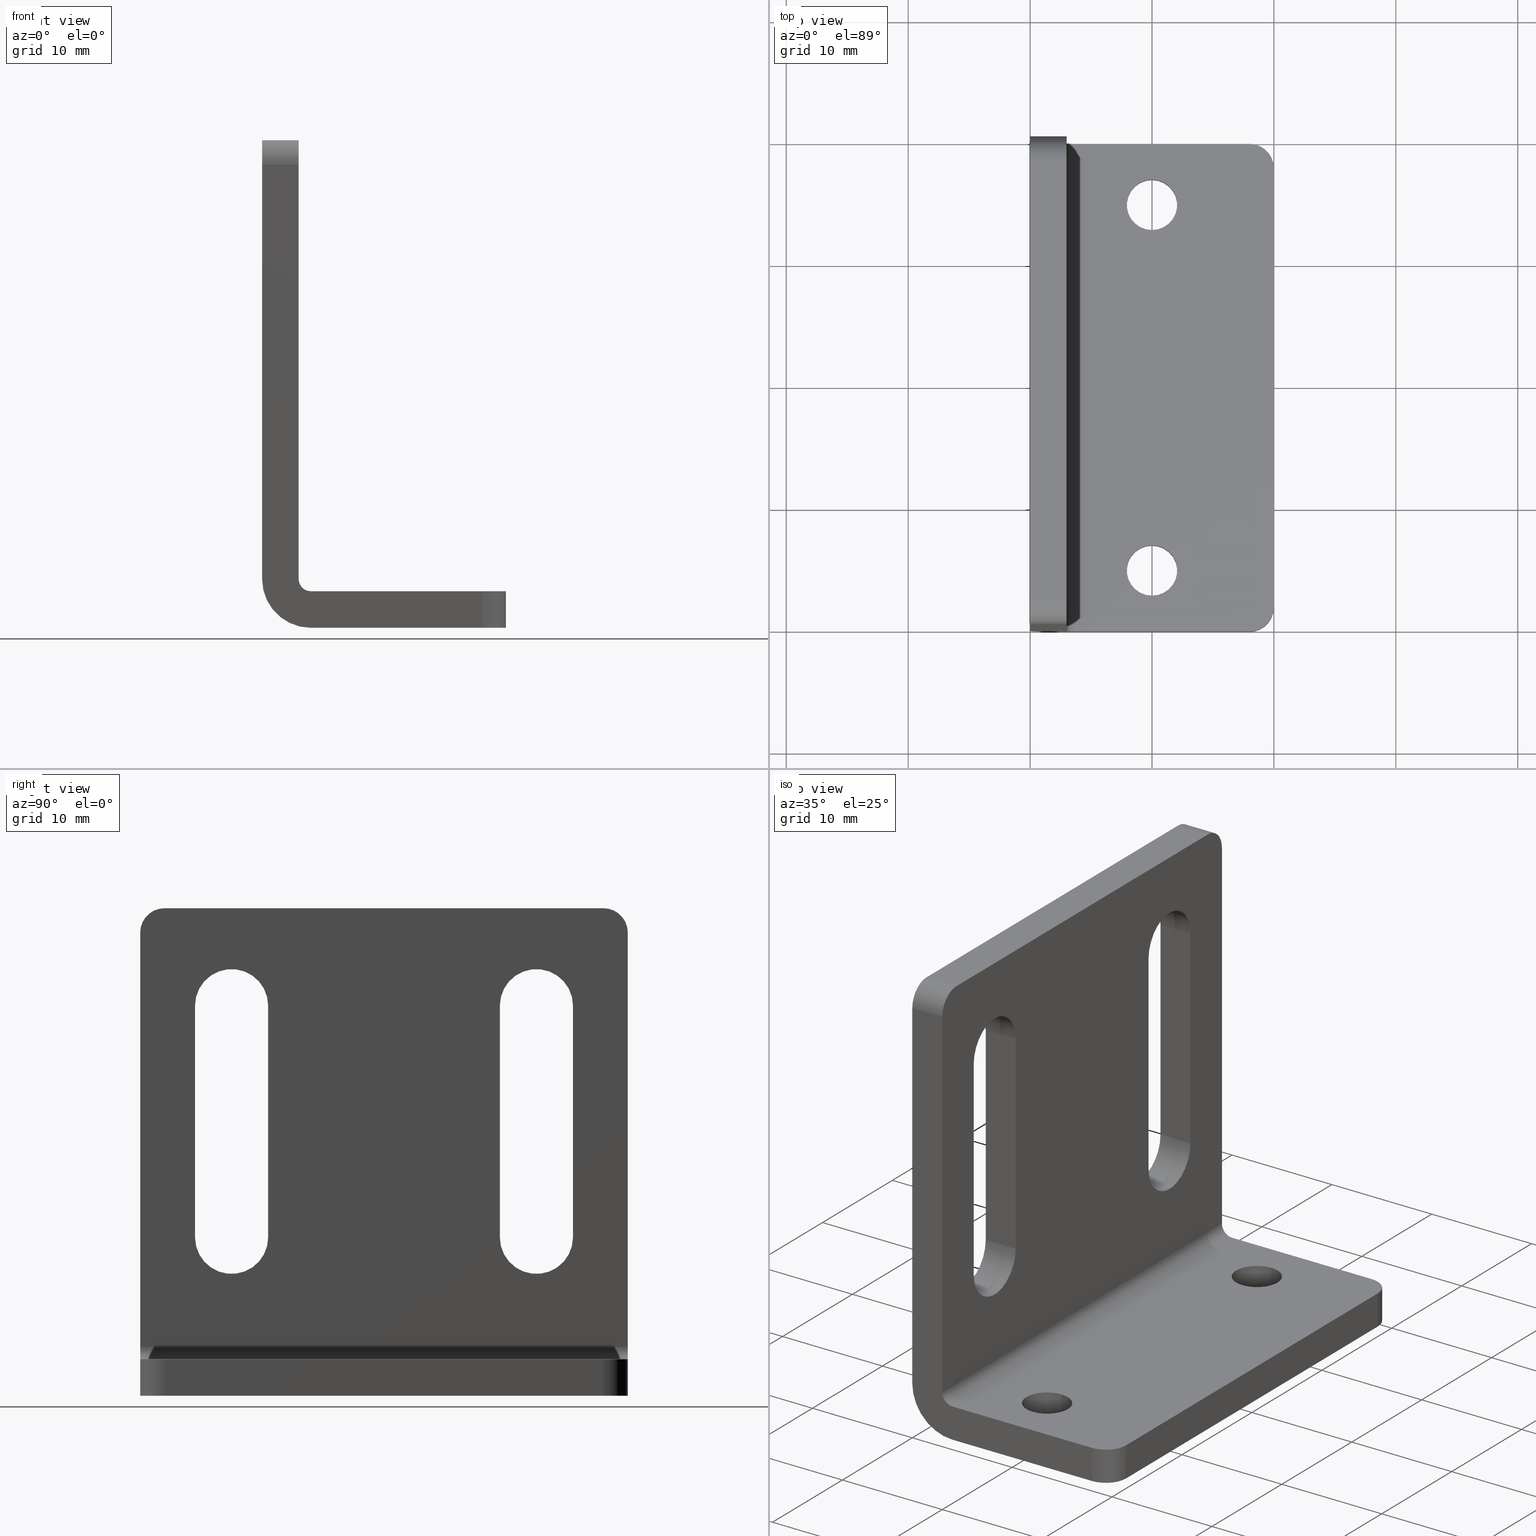
[diagram: canonical four-view strip — front | top / right | iso, engineering-drawing reading convention]
A machine part, canonical four-view strip (front | top / right | iso — engineering-drawing reading convention). The complete STEP part file that produces these views, byte-faithful:
ISO-10303-21;
HEADER;
/* Generated by software containing ST-Developer
 * from STEP Tools, Inc. (www.steptools.com) 
 */

FILE_DESCRIPTION(
/* description */ ('ACC.MAGNETE SP.3 ANGOLARE'),
/* implementation_level */ '2;1');

FILE_NAME(
/* name */ 
'Q:\\Catalogo\\2_Accessori Dierre\\Per Download Web e catalogo cartace
o\\CATALOGO ACCESSORI PER RIPARI\\PAGINA 68\\DMGAD0000001.stp',
/* time_stamp */ '2018-11-07T12:31:28+01:00',
/* author */ ('fzagni'),
/* organization */ (''),
/* preprocessor_version */ 'ST-DEVELOPER v16.1',
/* originating_system */ 'Autodesk Inventor 2016',
/* authorisation */ '');

FILE_SCHEMA (('AUTOMOTIVE_DESIGN { 1 0 10303 214 3 1 1 }'));
ENDSEC;

DATA;
#10=MECHANICAL_DESIGN_GEOMETRIC_PRESENTATION_REPRESENTATION('',(#13),#795);
#11=SHAPE_REPRESENTATION_RELATIONSHIP('SRR','None',#804,#12);
#12=ADVANCED_BREP_SHAPE_REPRESENTATION('',(#14),#794);
#13=STYLED_ITEM('',(#813),#14);
#14=MANIFOLD_SOLID_BREP('Importato1',#471);
#15=LINE('',#673,#55);
#16=LINE('',#675,#56);
#17=LINE('',#677,#57);
#18=LINE('',#681,#58);
#19=LINE('',#687,#59);
#20=LINE('',#690,#60);
#21=LINE('',#693,#61);
#22=LINE('',#697,#62);
#23=LINE('',#702,#63);
#24=LINE('',#704,#64);
#25=LINE('',#706,#65);
#26=LINE('',#710,#66);
#27=LINE('',#716,#67);
#28=LINE('',#719,#68);
#29=LINE('',#722,#69);
#30=LINE('',#726,#70);
#31=LINE('',#729,#71);
#32=LINE('',#730,#72);
#33=LINE('',#734,#73);
#34=LINE('',#736,#74);
#35=LINE('',#738,#75);
#36=LINE('',#742,#76);
#37=LINE('',#746,#77);
#38=LINE('',#748,#78);
#39=LINE('',#749,#79);
#40=LINE('',#753,#80);
#41=LINE('',#755,#81);
#42=LINE('',#757,#82);
#43=LINE('',#762,#83);
#44=LINE('',#764,#84);
#45=LINE('',#767,#85);
#46=LINE('',#769,#86);
#47=LINE('',#771,#87);
#48=LINE('',#772,#88);
#49=LINE('',#774,#89);
#50=LINE('',#776,#90);
#51=LINE('',#779,#91);
#52=LINE('',#780,#92);
#53=LINE('',#782,#93);
#54=LINE('',#784,#94);
#55=VECTOR('',#537,34.);
#56=VECTOR('',#538,40.);
#57=VECTOR('',#539,34.);
#58=VECTOR('',#542,36.);
#59=VECTOR('',#547,19.);
#60=VECTOR('',#550,19.);
#61=VECTOR('',#551,19.);
#62=VECTOR('',#554,19.);
#63=VECTOR('',#559,34.);
#64=VECTOR('',#560,40.);
#65=VECTOR('',#561,34.);
#66=VECTOR('',#564,36.);
#67=VECTOR('',#569,19.);
#68=VECTOR('',#572,19.);
#69=VECTOR('',#573,19.);
#70=VECTOR('',#576,19.);
#71=VECTOR('',#581,3.);
#72=VECTOR('',#582,3.);
#73=VECTOR('',#585,14.);
#74=VECTOR('',#586,40.);
#75=VECTOR('',#587,14.);
#76=VECTOR('',#590,36.);
#77=VECTOR('',#595,3.00000000000001);
#78=VECTOR('',#596,36.);
#79=VECTOR('',#597,3.00000000000001);
#80=VECTOR('',#600,14.);
#81=VECTOR('',#601,40.);
#82=VECTOR('',#602,14.);
#83=VECTOR('',#611,3.);
#84=VECTOR('',#614,3.00000000000001);
#85=VECTOR('',#619,3.00000000000001);
#86=VECTOR('',#622,3.);
#87=VECTOR('',#625,3.00000000000001);
#88=VECTOR('',#626,3.);
#89=VECTOR('',#629,3.00000000000001);
#90=VECTOR('',#632,3.00000000000001);
#91=VECTOR('',#637,3.);
#92=VECTOR('',#638,3.);
#93=VECTOR('',#641,3.);
#94=VECTOR('',#644,3.);
#95=PLANE('',#479);
#96=PLANE('',#486);
#97=PLANE('',#493);
#98=PLANE('',#494);
#99=PLANE('',#497);
#100=PLANE('',#498);
#101=PLANE('',#501);
#102=PLANE('',#504);
#103=PLANE('',#508);
#104=PLANE('',#510);
#105=PLANE('',#512);
#106=PLANE('',#514);
#107=FACE_BOUND('',#142,.T.);
#108=FACE_BOUND('',#144,.T.);
#109=FACE_BOUND('',#146,.T.);
#110=FACE_BOUND('',#147,.T.);
#111=FACE_BOUND('',#149,.T.);
#112=FACE_BOUND('',#150,.T.);
#113=FACE_BOUND('',#153,.T.);
#114=FACE_BOUND('',#154,.T.);
#115=FACE_BOUND('',#157,.T.);
#116=FACE_BOUND('',#158,.T.);
#117=FACE_OUTER_BOUND('',#141,.T.);
#118=FACE_OUTER_BOUND('',#143,.T.);
#119=FACE_OUTER_BOUND('',#145,.T.);
#120=FACE_OUTER_BOUND('',#148,.T.);
#121=FACE_OUTER_BOUND('',#151,.T.);
#122=FACE_OUTER_BOUND('',#152,.T.);
#123=FACE_OUTER_BOUND('',#155,.T.);
#124=FACE_OUTER_BOUND('',#156,.T.);
#125=FACE_OUTER_BOUND('',#159,.T.);
#126=FACE_OUTER_BOUND('',#160,.T.);
#127=FACE_OUTER_BOUND('',#161,.T.);
#128=FACE_OUTER_BOUND('',#162,.T.);
#129=FACE_OUTER_BOUND('',#163,.T.);
#130=FACE_OUTER_BOUND('',#164,.T.);
#131=FACE_OUTER_BOUND('',#165,.T.);
#132=FACE_OUTER_BOUND('',#166,.T.);
#133=FACE_OUTER_BOUND('',#167,.T.);
#134=FACE_OUTER_BOUND('',#168,.T.);
#135=FACE_OUTER_BOUND('',#169,.T.);
#136=FACE_OUTER_BOUND('',#170,.T.);
#137=FACE_OUTER_BOUND('',#171,.T.);
#138=FACE_OUTER_BOUND('',#172,.T.);
#139=FACE_OUTER_BOUND('',#173,.T.);
#140=FACE_OUTER_BOUND('',#174,.T.);
#141=EDGE_LOOP('',(#307));
#142=EDGE_LOOP('',(#308));
#143=EDGE_LOOP('',(#309));
#144=EDGE_LOOP('',(#310));
#145=EDGE_LOOP('',(#311,#312,#313,#314,#315,#316));
#146=EDGE_LOOP('',(#317,#318,#319,#320));
#147=EDGE_LOOP('',(#321,#322,#323,#324));
#148=EDGE_LOOP('',(#325,#326,#327,#328,#329,#330));
#149=EDGE_LOOP('',(#331,#332,#333,#334));
#150=EDGE_LOOP('',(#335,#336,#337,#338));
#151=EDGE_LOOP('',(#339,#340,#341,#342));
#152=EDGE_LOOP('',(#343,#344,#345,#346,#347,#348));
#153=EDGE_LOOP('',(#349));
#154=EDGE_LOOP('',(#350));
#155=EDGE_LOOP('',(#351,#352,#353,#354));
#156=EDGE_LOOP('',(#355,#356,#357,#358,#359,#360));
#157=EDGE_LOOP('',(#361));
#158=EDGE_LOOP('',(#362));
#159=EDGE_LOOP('',(#363,#364,#365,#366,#367,#368,#369,#370));
#160=EDGE_LOOP('',(#371,#372,#373,#374,#375,#376,#377,#378));
#161=EDGE_LOOP('',(#379,#380,#381,#382));
#162=EDGE_LOOP('',(#383,#384,#385,#386));
#163=EDGE_LOOP('',(#387,#388,#389,#390));
#164=EDGE_LOOP('',(#391,#392,#393,#394));
#165=EDGE_LOOP('',(#395,#396,#397,#398));
#166=EDGE_LOOP('',(#399,#400,#401,#402));
#167=EDGE_LOOP('',(#403,#404,#405,#406));
#168=EDGE_LOOP('',(#407,#408,#409,#410));
#169=EDGE_LOOP('',(#411,#412,#413,#414));
#170=EDGE_LOOP('',(#415,#416,#417,#418));
#171=EDGE_LOOP('',(#419,#420,#421,#422));
#172=EDGE_LOOP('',(#423,#424,#425,#426));
#173=EDGE_LOOP('',(#427,#428,#429,#430));
#174=EDGE_LOOP('',(#431,#432,#433,#434));
#175=CIRCLE('',#474,2.067);
#176=CIRCLE('',#475,2.067);
#177=CIRCLE('',#477,2.067);
#178=CIRCLE('',#478,2.067);
#179=CIRCLE('',#480,2.);
#180=CIRCLE('',#481,2.);
#181=CIRCLE('',#482,3.);
#182=CIRCLE('',#483,3.);
#183=CIRCLE('',#484,3.);
#184=CIRCLE('',#485,3.);
#185=CIRCLE('',#487,2.);
#186=CIRCLE('',#488,2.);
#187=CIRCLE('',#489,3.);
#188=CIRCLE('',#490,3.);
#189=CIRCLE('',#491,3.);
#190=CIRCLE('',#492,3.);
#191=CIRCLE('',#495,2.);
#192=CIRCLE('',#496,2.);
#193=CIRCLE('',#499,2.);
#194=CIRCLE('',#500,2.);
#195=CIRCLE('',#502,4.);
#196=CIRCLE('',#503,1.);
#197=CIRCLE('',#505,4.);
#198=CIRCLE('',#506,1.);
#199=VERTEX_POINT('',#661);
#200=VERTEX_POINT('',#663);
#201=VERTEX_POINT('',#666);
#202=VERTEX_POINT('',#668);
#203=VERTEX_POINT('',#671);
#204=VERTEX_POINT('',#672);
#205=VERTEX_POINT('',#674);
#206=VERTEX_POINT('',#676);
#207=VERTEX_POINT('',#678);
#208=VERTEX_POINT('',#680);
#209=VERTEX_POINT('',#683);
#210=VERTEX_POINT('',#684);
#211=VERTEX_POINT('',#686);
#212=VERTEX_POINT('',#688);
#213=VERTEX_POINT('',#691);
#214=VERTEX_POINT('',#692);
#215=VERTEX_POINT('',#694);
#216=VERTEX_POINT('',#696);
#217=VERTEX_POINT('',#700);
#218=VERTEX_POINT('',#701);
#219=VERTEX_POINT('',#703);
#220=VERTEX_POINT('',#705);
#221=VERTEX_POINT('',#707);
#222=VERTEX_POINT('',#709);
#223=VERTEX_POINT('',#712);
#224=VERTEX_POINT('',#713);
#225=VERTEX_POINT('',#715);
#226=VERTEX_POINT('',#717);
#227=VERTEX_POINT('',#720);
#228=VERTEX_POINT('',#721);
#229=VERTEX_POINT('',#723);
#230=VERTEX_POINT('',#725);
#231=VERTEX_POINT('',#732);
#232=VERTEX_POINT('',#733);
#233=VERTEX_POINT('',#735);
#234=VERTEX_POINT('',#737);
#235=VERTEX_POINT('',#739);
#236=VERTEX_POINT('',#741);
#237=VERTEX_POINT('',#745);
#238=VERTEX_POINT('',#747);
#239=VERTEX_POINT('',#751);
#240=VERTEX_POINT('',#752);
#241=VERTEX_POINT('',#754);
#242=VERTEX_POINT('',#756);
#243=EDGE_CURVE('',#199,#199,#175,.T.);
#244=EDGE_CURVE('',#200,#200,#176,.T.);
#245=EDGE_CURVE('',#201,#201,#177,.T.);
#246=EDGE_CURVE('',#202,#202,#178,.T.);
#247=EDGE_CURVE('',#203,#204,#15,.T.);
#248=EDGE_CURVE('',#204,#205,#16,.T.);
#249=EDGE_CURVE('',#206,#205,#17,.T.);
#250=EDGE_CURVE('',#206,#207,#179,.T.);
#251=EDGE_CURVE('',#208,#207,#18,.T.);
#252=EDGE_CURVE('',#208,#203,#180,.T.);
#253=EDGE_CURVE('',#209,#210,#181,.T.);
#254=EDGE_CURVE('',#211,#209,#19,.T.);
#255=EDGE_CURVE('',#212,#211,#182,.T.);
#256=EDGE_CURVE('',#210,#212,#20,.T.);
#257=EDGE_CURVE('',#213,#214,#21,.T.);
#258=EDGE_CURVE('',#214,#215,#183,.T.);
#259=EDGE_CURVE('',#215,#216,#22,.T.);
#260=EDGE_CURVE('',#216,#213,#184,.T.);
#261=EDGE_CURVE('',#217,#218,#23,.T.);
#262=EDGE_CURVE('',#217,#219,#24,.T.);
#263=EDGE_CURVE('',#219,#220,#25,.T.);
#264=EDGE_CURVE('',#220,#221,#185,.T.);
#265=EDGE_CURVE('',#221,#222,#26,.T.);
#266=EDGE_CURVE('',#222,#218,#186,.T.);
#267=EDGE_CURVE('',#223,#224,#187,.T.);
#268=EDGE_CURVE('',#225,#223,#27,.T.);
#269=EDGE_CURVE('',#226,#225,#188,.T.);
#270=EDGE_CURVE('',#224,#226,#28,.T.);
#271=EDGE_CURVE('',#227,#228,#29,.T.);
#272=EDGE_CURVE('',#228,#229,#189,.T.);
#273=EDGE_CURVE('',#229,#230,#30,.T.);
#274=EDGE_CURVE('',#230,#227,#190,.T.);
#275=EDGE_CURVE('',#207,#222,#31,.T.);
#276=EDGE_CURVE('',#221,#208,#32,.T.);
#277=EDGE_CURVE('',#231,#232,#33,.T.);
#278=EDGE_CURVE('',#231,#233,#34,.T.);
#279=EDGE_CURVE('',#233,#234,#35,.T.);
#280=EDGE_CURVE('',#234,#235,#191,.T.);
#281=EDGE_CURVE('',#235,#236,#36,.T.);
#282=EDGE_CURVE('',#236,#232,#192,.T.);
#283=EDGE_CURVE('',#235,#237,#37,.T.);
#284=EDGE_CURVE('',#237,#238,#38,.T.);
#285=EDGE_CURVE('',#238,#236,#39,.T.);
#286=EDGE_CURVE('',#239,#240,#40,.T.);
#287=EDGE_CURVE('',#240,#241,#41,.T.);
#288=EDGE_CURVE('',#242,#241,#42,.T.);
#289=EDGE_CURVE('',#242,#238,#193,.T.);
#290=EDGE_CURVE('',#237,#239,#194,.T.);
#291=EDGE_CURVE('',#233,#204,#195,.T.);
#292=EDGE_CURVE('',#203,#220,#43,.T.);
#293=EDGE_CURVE('',#219,#240,#196,.T.);
#294=EDGE_CURVE('',#239,#234,#44,.T.);
#295=EDGE_CURVE('',#205,#231,#197,.T.);
#296=EDGE_CURVE('',#232,#242,#45,.T.);
#297=EDGE_CURVE('',#241,#217,#198,.T.);
#298=EDGE_CURVE('',#218,#206,#46,.T.);
#299=EDGE_CURVE('',#214,#229,#47,.T.);
#300=EDGE_CURVE('',#215,#228,#48,.T.);
#301=EDGE_CURVE('',#213,#230,#49,.T.);
#302=EDGE_CURVE('',#216,#227,#50,.T.);
#303=EDGE_CURVE('',#210,#223,#51,.T.);
#304=EDGE_CURVE('',#209,#224,#52,.T.);
#305=EDGE_CURVE('',#211,#226,#53,.T.);
#306=EDGE_CURVE('',#212,#225,#54,.T.);
#307=ORIENTED_EDGE('',*,*,#243,.F.);
#308=ORIENTED_EDGE('',*,*,#244,.T.);
#309=ORIENTED_EDGE('',*,*,#245,.F.);
#310=ORIENTED_EDGE('',*,*,#246,.T.);
#311=ORIENTED_EDGE('',*,*,#247,.T.);
#312=ORIENTED_EDGE('',*,*,#248,.T.);
#313=ORIENTED_EDGE('',*,*,#249,.F.);
#314=ORIENTED_EDGE('',*,*,#250,.T.);
#315=ORIENTED_EDGE('',*,*,#251,.F.);
#316=ORIENTED_EDGE('',*,*,#252,.T.);
#317=ORIENTED_EDGE('',*,*,#253,.F.);
#318=ORIENTED_EDGE('',*,*,#254,.F.);
#319=ORIENTED_EDGE('',*,*,#255,.F.);
#320=ORIENTED_EDGE('',*,*,#256,.F.);
#321=ORIENTED_EDGE('',*,*,#257,.T.);
#322=ORIENTED_EDGE('',*,*,#258,.T.);
#323=ORIENTED_EDGE('',*,*,#259,.T.);
#324=ORIENTED_EDGE('',*,*,#260,.T.);
#325=ORIENTED_EDGE('',*,*,#261,.F.);
#326=ORIENTED_EDGE('',*,*,#262,.T.);
#327=ORIENTED_EDGE('',*,*,#263,.T.);
#328=ORIENTED_EDGE('',*,*,#264,.T.);
#329=ORIENTED_EDGE('',*,*,#265,.T.);
#330=ORIENTED_EDGE('',*,*,#266,.T.);
#331=ORIENTED_EDGE('',*,*,#267,.F.);
#332=ORIENTED_EDGE('',*,*,#268,.F.);
#333=ORIENTED_EDGE('',*,*,#269,.F.);
#334=ORIENTED_EDGE('',*,*,#270,.F.);
#335=ORIENTED_EDGE('',*,*,#271,.T.);
#336=ORIENTED_EDGE('',*,*,#272,.T.);
#337=ORIENTED_EDGE('',*,*,#273,.T.);
#338=ORIENTED_EDGE('',*,*,#274,.T.);
#339=ORIENTED_EDGE('',*,*,#251,.T.);
#340=ORIENTED_EDGE('',*,*,#275,.T.);
#341=ORIENTED_EDGE('',*,*,#265,.F.);
#342=ORIENTED_EDGE('',*,*,#276,.T.);
#343=ORIENTED_EDGE('',*,*,#277,.F.);
#344=ORIENTED_EDGE('',*,*,#278,.T.);
#345=ORIENTED_EDGE('',*,*,#279,.T.);
#346=ORIENTED_EDGE('',*,*,#280,.T.);
#347=ORIENTED_EDGE('',*,*,#281,.T.);
#348=ORIENTED_EDGE('',*,*,#282,.T.);
#349=ORIENTED_EDGE('',*,*,#245,.T.);
#350=ORIENTED_EDGE('',*,*,#243,.T.);
#351=ORIENTED_EDGE('',*,*,#281,.F.);
#352=ORIENTED_EDGE('',*,*,#283,.T.);
#353=ORIENTED_EDGE('',*,*,#284,.T.);
#354=ORIENTED_EDGE('',*,*,#285,.T.);
#355=ORIENTED_EDGE('',*,*,#286,.T.);
#356=ORIENTED_EDGE('',*,*,#287,.T.);
#357=ORIENTED_EDGE('',*,*,#288,.F.);
#358=ORIENTED_EDGE('',*,*,#289,.T.);
#359=ORIENTED_EDGE('',*,*,#284,.F.);
#360=ORIENTED_EDGE('',*,*,#290,.T.);
#361=ORIENTED_EDGE('',*,*,#246,.F.);
#362=ORIENTED_EDGE('',*,*,#244,.F.);
#363=ORIENTED_EDGE('',*,*,#279,.F.);
#364=ORIENTED_EDGE('',*,*,#291,.T.);
#365=ORIENTED_EDGE('',*,*,#247,.F.);
#366=ORIENTED_EDGE('',*,*,#292,.T.);
#367=ORIENTED_EDGE('',*,*,#263,.F.);
#368=ORIENTED_EDGE('',*,*,#293,.T.);
#369=ORIENTED_EDGE('',*,*,#286,.F.);
#370=ORIENTED_EDGE('',*,*,#294,.T.);
#371=ORIENTED_EDGE('',*,*,#249,.T.);
#372=ORIENTED_EDGE('',*,*,#295,.T.);
#373=ORIENTED_EDGE('',*,*,#277,.T.);
#374=ORIENTED_EDGE('',*,*,#296,.T.);
#375=ORIENTED_EDGE('',*,*,#288,.T.);
#376=ORIENTED_EDGE('',*,*,#297,.T.);
#377=ORIENTED_EDGE('',*,*,#261,.T.);
#378=ORIENTED_EDGE('',*,*,#298,.T.);
#379=ORIENTED_EDGE('',*,*,#299,.T.);
#380=ORIENTED_EDGE('',*,*,#272,.F.);
#381=ORIENTED_EDGE('',*,*,#300,.F.);
#382=ORIENTED_EDGE('',*,*,#258,.F.);
#383=ORIENTED_EDGE('',*,*,#301,.T.);
#384=ORIENTED_EDGE('',*,*,#273,.F.);
#385=ORIENTED_EDGE('',*,*,#299,.F.);
#386=ORIENTED_EDGE('',*,*,#257,.F.);
#387=ORIENTED_EDGE('',*,*,#302,.T.);
#388=ORIENTED_EDGE('',*,*,#274,.F.);
#389=ORIENTED_EDGE('',*,*,#301,.F.);
#390=ORIENTED_EDGE('',*,*,#260,.F.);
#391=ORIENTED_EDGE('',*,*,#300,.T.);
#392=ORIENTED_EDGE('',*,*,#271,.F.);
#393=ORIENTED_EDGE('',*,*,#302,.F.);
#394=ORIENTED_EDGE('',*,*,#259,.F.);
#395=ORIENTED_EDGE('',*,*,#253,.T.);
#396=ORIENTED_EDGE('',*,*,#303,.T.);
#397=ORIENTED_EDGE('',*,*,#267,.T.);
#398=ORIENTED_EDGE('',*,*,#304,.F.);
#399=ORIENTED_EDGE('',*,*,#254,.T.);
#400=ORIENTED_EDGE('',*,*,#304,.T.);
#401=ORIENTED_EDGE('',*,*,#270,.T.);
#402=ORIENTED_EDGE('',*,*,#305,.F.);
#403=ORIENTED_EDGE('',*,*,#255,.T.);
#404=ORIENTED_EDGE('',*,*,#305,.T.);
#405=ORIENTED_EDGE('',*,*,#269,.T.);
#406=ORIENTED_EDGE('',*,*,#306,.F.);
#407=ORIENTED_EDGE('',*,*,#256,.T.);
#408=ORIENTED_EDGE('',*,*,#306,.T.);
#409=ORIENTED_EDGE('',*,*,#268,.T.);
#410=ORIENTED_EDGE('',*,*,#303,.F.);
#411=ORIENTED_EDGE('',*,*,#264,.F.);
#412=ORIENTED_EDGE('',*,*,#292,.F.);
#413=ORIENTED_EDGE('',*,*,#252,.F.);
#414=ORIENTED_EDGE('',*,*,#276,.F.);
#415=ORIENTED_EDGE('',*,*,#282,.F.);
#416=ORIENTED_EDGE('',*,*,#285,.F.);
#417=ORIENTED_EDGE('',*,*,#289,.F.);
#418=ORIENTED_EDGE('',*,*,#296,.F.);
#419=ORIENTED_EDGE('',*,*,#280,.F.);
#420=ORIENTED_EDGE('',*,*,#294,.F.);
#421=ORIENTED_EDGE('',*,*,#290,.F.);
#422=ORIENTED_EDGE('',*,*,#283,.F.);
#423=ORIENTED_EDGE('',*,*,#266,.F.);
#424=ORIENTED_EDGE('',*,*,#275,.F.);
#425=ORIENTED_EDGE('',*,*,#250,.F.);
#426=ORIENTED_EDGE('',*,*,#298,.F.);
#427=ORIENTED_EDGE('',*,*,#291,.F.);
#428=ORIENTED_EDGE('',*,*,#278,.F.);
#429=ORIENTED_EDGE('',*,*,#295,.F.);
#430=ORIENTED_EDGE('',*,*,#248,.F.);
#431=ORIENTED_EDGE('',*,*,#293,.F.);
#432=ORIENTED_EDGE('',*,*,#262,.F.);
#433=ORIENTED_EDGE('',*,*,#297,.F.);
#434=ORIENTED_EDGE('',*,*,#287,.F.);
#435=CYLINDRICAL_SURFACE('',#473,2.067);
#436=CYLINDRICAL_SURFACE('',#476,2.067);
#437=CYLINDRICAL_SURFACE('',#507,3.);
#438=CYLINDRICAL_SURFACE('',#509,3.);
#439=CYLINDRICAL_SURFACE('',#511,3.);
#440=CYLINDRICAL_SURFACE('',#513,3.);
#441=CYLINDRICAL_SURFACE('',#515,2.);
#442=CYLINDRICAL_SURFACE('',#516,2.);
#443=CYLINDRICAL_SURFACE('',#517,2.);
#444=CYLINDRICAL_SURFACE('',#518,2.);
#445=CYLINDRICAL_SURFACE('',#519,4.);
#446=CYLINDRICAL_SURFACE('',#520,1.);
#447=ADVANCED_FACE('',(#117,#107),#435,.F.);
#448=ADVANCED_FACE('',(#118,#108),#436,.F.);
#449=ADVANCED_FACE('',(#119,#109,#110),#95,.T.);
#450=ADVANCED_FACE('',(#120,#111,#112),#96,.T.);
#451=ADVANCED_FACE('',(#121),#97,.T.);
#452=ADVANCED_FACE('',(#122,#113,#114),#98,.T.);
#453=ADVANCED_FACE('',(#123),#99,.T.);
#454=ADVANCED_FACE('',(#124,#115,#116),#100,.T.);
#455=ADVANCED_FACE('',(#125),#101,.F.);
#456=ADVANCED_FACE('',(#126),#102,.T.);
#457=ADVANCED_FACE('',(#127),#437,.F.);
#458=ADVANCED_FACE('',(#128),#103,.T.);
#459=ADVANCED_FACE('',(#129),#438,.F.);
#460=ADVANCED_FACE('',(#130),#104,.T.);
#461=ADVANCED_FACE('',(#131),#439,.F.);
#462=ADVANCED_FACE('',(#132),#105,.F.);
#463=ADVANCED_FACE('',(#133),#440,.F.);
#464=ADVANCED_FACE('',(#134),#106,.F.);
#465=ADVANCED_FACE('',(#135),#441,.T.);
#466=ADVANCED_FACE('',(#136),#442,.T.);
#467=ADVANCED_FACE('',(#137),#443,.T.);
#468=ADVANCED_FACE('',(#138),#444,.T.);
#469=ADVANCED_FACE('',(#139),#445,.T.);
#470=ADVANCED_FACE('',(#140),#446,.F.);
#471=CLOSED_SHELL('',(#447,#448,#449,#450,#451,#452,#453,#454,#455,#456,
#457,#458,#459,#460,#461,#462,#463,#464,#465,#466,#467,#468,#469,#470));
#472=AXIS2_PLACEMENT_3D('placement',#659,#521,#522);
#473=AXIS2_PLACEMENT_3D('',#660,#523,#524);
#474=AXIS2_PLACEMENT_3D('',#662,#525,#526);
#475=AXIS2_PLACEMENT_3D('',#664,#527,#528);
#476=AXIS2_PLACEMENT_3D('',#665,#529,#530);
#477=AXIS2_PLACEMENT_3D('',#667,#531,#532);
#478=AXIS2_PLACEMENT_3D('',#669,#533,#534);
#479=AXIS2_PLACEMENT_3D('',#670,#535,#536);
#480=AXIS2_PLACEMENT_3D('',#679,#540,#541);
#481=AXIS2_PLACEMENT_3D('',#682,#543,#544);
#482=AXIS2_PLACEMENT_3D('',#685,#545,#546);
#483=AXIS2_PLACEMENT_3D('',#689,#548,#549);
#484=AXIS2_PLACEMENT_3D('',#695,#552,#553);
#485=AXIS2_PLACEMENT_3D('',#698,#555,#556);
#486=AXIS2_PLACEMENT_3D('',#699,#557,#558);
#487=AXIS2_PLACEMENT_3D('',#708,#562,#563);
#488=AXIS2_PLACEMENT_3D('',#711,#565,#566);
#489=AXIS2_PLACEMENT_3D('',#714,#567,#568);
#490=AXIS2_PLACEMENT_3D('',#718,#570,#571);
#491=AXIS2_PLACEMENT_3D('',#724,#574,#575);
#492=AXIS2_PLACEMENT_3D('',#727,#577,#578);
#493=AXIS2_PLACEMENT_3D('',#728,#579,#580);
#494=AXIS2_PLACEMENT_3D('',#731,#583,#584);
#495=AXIS2_PLACEMENT_3D('',#740,#588,#589);
#496=AXIS2_PLACEMENT_3D('',#743,#591,#592);
#497=AXIS2_PLACEMENT_3D('',#744,#593,#594);
#498=AXIS2_PLACEMENT_3D('',#750,#598,#599);
#499=AXIS2_PLACEMENT_3D('',#758,#603,#604);
#500=AXIS2_PLACEMENT_3D('',#759,#605,#606);
#501=AXIS2_PLACEMENT_3D('',#760,#607,#608);
#502=AXIS2_PLACEMENT_3D('',#761,#609,#610);
#503=AXIS2_PLACEMENT_3D('',#763,#612,#613);
#504=AXIS2_PLACEMENT_3D('',#765,#615,#616);
#505=AXIS2_PLACEMENT_3D('',#766,#617,#618);
#506=AXIS2_PLACEMENT_3D('',#768,#620,#621);
#507=AXIS2_PLACEMENT_3D('',#770,#623,#624);
#508=AXIS2_PLACEMENT_3D('',#773,#627,#628);
#509=AXIS2_PLACEMENT_3D('',#775,#630,#631);
#510=AXIS2_PLACEMENT_3D('',#777,#633,#634);
#511=AXIS2_PLACEMENT_3D('',#778,#635,#636);
#512=AXIS2_PLACEMENT_3D('',#781,#639,#640);
#513=AXIS2_PLACEMENT_3D('',#783,#642,#643);
#514=AXIS2_PLACEMENT_3D('',#785,#645,#646);
#515=AXIS2_PLACEMENT_3D('',#786,#647,#648);
#516=AXIS2_PLACEMENT_3D('',#787,#649,#650);
#517=AXIS2_PLACEMENT_3D('',#788,#651,#652);
#518=AXIS2_PLACEMENT_3D('',#789,#653,#654);
#519=AXIS2_PLACEMENT_3D('',#790,#655,#656);
#520=AXIS2_PLACEMENT_3D('',#791,#657,#658);
#521=DIRECTION('axis',(0.,0.,1.));
#522=DIRECTION('refdir',(1.,0.,0.));
#523=DIRECTION('center_axis',(0.,0.,1.));
#524=DIRECTION('ref_axis',(-1.,0.,0.));
#525=DIRECTION('center_axis',(0.,0.,1.));
#526=DIRECTION('ref_axis',(0.,1.,0.));
#527=DIRECTION('center_axis',(0.,0.,1.));
#528=DIRECTION('ref_axis',(0.,-1.,0.));
#529=DIRECTION('center_axis',(0.,0.,1.));
#530=DIRECTION('ref_axis',(-1.,0.,0.));
#531=DIRECTION('center_axis',(0.,0.,1.));
#532=DIRECTION('ref_axis',(0.,1.,0.));
#533=DIRECTION('center_axis',(0.,0.,1.));
#534=DIRECTION('ref_axis',(0.,-1.,0.));
#535=DIRECTION('center_axis',(-1.,0.,0.));
#536=DIRECTION('ref_axis',(0.,0.,1.));
#537=DIRECTION('',(0.,0.,-1.));
#538=DIRECTION('',(0.,-1.,0.));
#539=DIRECTION('',(0.,0.,-1.));
#540=DIRECTION('center_axis',(-1.,0.,0.));
#541=DIRECTION('ref_axis',(0.,1.,0.));
#542=DIRECTION('',(0.,-1.,0.));
#543=DIRECTION('center_axis',(-1.,0.,0.));
#544=DIRECTION('ref_axis',(0.,1.,0.));
#545=DIRECTION('center_axis',(-1.,0.,0.));
#546=DIRECTION('ref_axis',(0.,1.,0.));
#547=DIRECTION('',(0.,0.,-1.));
#548=DIRECTION('center_axis',(-1.,0.,0.));
#549=DIRECTION('ref_axis',(0.,1.,0.));
#550=DIRECTION('',(0.,0.,1.));
#551=DIRECTION('',(0.,0.,-1.));
#552=DIRECTION('center_axis',(1.,0.,0.));
#553=DIRECTION('ref_axis',(0.,1.,0.));
#554=DIRECTION('',(0.,0.,1.));
#555=DIRECTION('center_axis',(1.,0.,0.));
#556=DIRECTION('ref_axis',(0.,1.,0.));
#557=DIRECTION('center_axis',(1.,0.,0.));
#558=DIRECTION('ref_axis',(0.,0.,-1.));
#559=DIRECTION('',(0.,0.,1.));
#560=DIRECTION('',(0.,1.,0.));
#561=DIRECTION('',(0.,0.,1.));
#562=DIRECTION('center_axis',(1.,0.,0.));
#563=DIRECTION('ref_axis',(0.,-1.,0.));
#564=DIRECTION('',(0.,-1.,0.));
#565=DIRECTION('center_axis',(1.,0.,0.));
#566=DIRECTION('ref_axis',(0.,-1.,0.));
#567=DIRECTION('center_axis',(1.,0.,0.));
#568=DIRECTION('ref_axis',(0.,0.,1.));
#569=DIRECTION('',(0.,0.,-1.));
#570=DIRECTION('center_axis',(1.,0.,0.));
#571=DIRECTION('ref_axis',(0.,0.,-1.));
#572=DIRECTION('',(0.,0.,1.));
#573=DIRECTION('',(0.,0.,-1.));
#574=DIRECTION('center_axis',(-1.,0.,0.));
#575=DIRECTION('ref_axis',(0.,0.,1.));
#576=DIRECTION('',(0.,0.,1.));
#577=DIRECTION('center_axis',(-1.,0.,0.));
#578=DIRECTION('ref_axis',(0.,0.,-1.));
#579=DIRECTION('center_axis',(0.,0.,1.));
#580=DIRECTION('ref_axis',(1.,0.,0.));
#581=DIRECTION('',(1.,0.,0.));
#582=DIRECTION('',(-1.,0.,0.));
#583=DIRECTION('center_axis',(0.,0.,-1.));
#584=DIRECTION('ref_axis',(-1.,0.,0.));
#585=DIRECTION('',(1.,0.,0.));
#586=DIRECTION('',(0.,1.,0.));
#587=DIRECTION('',(1.,0.,0.));
#588=DIRECTION('center_axis',(0.,0.,-1.));
#589=DIRECTION('ref_axis',(0.,1.,0.));
#590=DIRECTION('',(0.,-1.,0.));
#591=DIRECTION('center_axis',(0.,0.,-1.));
#592=DIRECTION('ref_axis',(0.,1.,0.));
#593=DIRECTION('center_axis',(1.,0.,0.));
#594=DIRECTION('ref_axis',(0.,0.,-1.));
#595=DIRECTION('',(0.,0.,1.));
#596=DIRECTION('',(0.,-1.,0.));
#597=DIRECTION('',(0.,0.,-1.));
#598=DIRECTION('center_axis',(0.,0.,1.));
#599=DIRECTION('ref_axis',(1.,0.,0.));
#600=DIRECTION('',(-1.,0.,0.));
#601=DIRECTION('',(0.,-1.,0.));
#602=DIRECTION('',(-1.,0.,0.));
#603=DIRECTION('center_axis',(0.,0.,1.));
#604=DIRECTION('ref_axis',(0.,-1.,0.));
#605=DIRECTION('center_axis',(0.,0.,1.));
#606=DIRECTION('ref_axis',(0.,-1.,0.));
#607=DIRECTION('center_axis',(0.,-1.,0.));
#608=DIRECTION('ref_axis',(0.,0.,-1.));
#609=DIRECTION('center_axis',(0.,1.,0.));
#610=DIRECTION('ref_axis',(0.,0.,-1.));
#611=DIRECTION('',(1.,0.,0.));
#612=DIRECTION('center_axis',(0.,-1.,0.));
#613=DIRECTION('ref_axis',(0.,0.,-1.));
#614=DIRECTION('',(0.,0.,-1.));
#615=DIRECTION('center_axis',(0.,-1.,0.));
#616=DIRECTION('ref_axis',(0.,0.,-1.));
#617=DIRECTION('center_axis',(0.,-1.,0.));
#618=DIRECTION('ref_axis',(0.,0.,-1.));
#619=DIRECTION('',(0.,0.,1.));
#620=DIRECTION('center_axis',(0.,1.,0.));
#621=DIRECTION('ref_axis',(0.,0.,-1.));
#622=DIRECTION('',(-1.,0.,0.));
#623=DIRECTION('center_axis',(1.,0.,0.));
#624=DIRECTION('ref_axis',(0.,0.,1.));
#625=DIRECTION('',(1.,0.,0.));
#626=DIRECTION('',(1.,0.,0.));
#627=DIRECTION('center_axis',(0.,1.,0.));
#628=DIRECTION('ref_axis',(0.,0.,1.));
#629=DIRECTION('',(1.,0.,0.));
#630=DIRECTION('center_axis',(1.,0.,0.));
#631=DIRECTION('ref_axis',(0.,0.,-1.));
#632=DIRECTION('',(1.,0.,0.));
#633=DIRECTION('center_axis',(0.,-1.,0.));
#634=DIRECTION('ref_axis',(0.,0.,-1.));
#635=DIRECTION('center_axis',(1.,0.,0.));
#636=DIRECTION('ref_axis',(0.,0.,1.));
#637=DIRECTION('',(1.,0.,0.));
#638=DIRECTION('',(1.,0.,0.));
#639=DIRECTION('center_axis',(0.,1.,0.));
#640=DIRECTION('ref_axis',(0.,0.,1.));
#641=DIRECTION('',(1.,0.,0.));
#642=DIRECTION('center_axis',(1.,0.,0.));
#643=DIRECTION('ref_axis',(0.,0.,-1.));
#644=DIRECTION('',(1.,0.,0.));
#645=DIRECTION('center_axis',(0.,-1.,0.));
#646=DIRECTION('ref_axis',(0.,0.,-1.));
#647=DIRECTION('center_axis',(1.,0.,0.));
#648=DIRECTION('ref_axis',(0.,-1.,0.));
#649=DIRECTION('center_axis',(0.,0.,1.));
#650=DIRECTION('ref_axis',(-0.707106781186548,0.707106781186547,0.));
#651=DIRECTION('center_axis',(0.,0.,-1.));
#652=DIRECTION('ref_axis',(-0.707106781186548,-0.707106781186547,0.));
#653=DIRECTION('center_axis',(-1.,0.,0.));
#654=DIRECTION('ref_axis',(0.,1.,0.));
#655=DIRECTION('center_axis',(0.,-1.,0.));
#656=DIRECTION('ref_axis',(0.707106781186548,0.,0.707106781186547));
#657=DIRECTION('center_axis',(0.,1.,0.));
#658=DIRECTION('ref_axis',(0.,0.,1.));
#659=CARTESIAN_POINT('',(0.,0.,0.));
#660=CARTESIAN_POINT('Origin',(-10.,15.,-1.0000001E-8));
#661=CARTESIAN_POINT('',(-10.,17.067,-6.123234E-16));
#662=CARTESIAN_POINT('Origin',(-10.,15.,-6.123234E-16));
#663=CARTESIAN_POINT('',(-10.,17.067,3.00000000000001));
#664=CARTESIAN_POINT('Origin',(-10.,15.,3.00000000000001));
#665=CARTESIAN_POINT('Origin',(-10.,-15.,-1.0000001E-8));
#666=CARTESIAN_POINT('',(-10.,-12.933,-6.123234E-16));
#667=CARTESIAN_POINT('Origin',(-10.,-15.,-6.123234E-16));
#668=CARTESIAN_POINT('',(-10.,-12.933,3.00000000000001));
#669=CARTESIAN_POINT('Origin',(-10.,-15.,3.00000000000001));
#670=CARTESIAN_POINT('Origin',(-20.,-22.,41.8));
#671=CARTESIAN_POINT('',(-20.,20.,38.));
#672=CARTESIAN_POINT('',(-20.,20.,4.00000000000001));
#673=CARTESIAN_POINT('',(-20.,20.,38.));
#674=CARTESIAN_POINT('',(-20.,-20.,4.00000000000001));
#675=CARTESIAN_POINT('',(-20.,20.,4.00000000000001));
#676=CARTESIAN_POINT('',(-20.,-20.,38.));
#677=CARTESIAN_POINT('',(-20.,-20.,38.));
#678=CARTESIAN_POINT('',(-20.,-18.,40.));
#679=CARTESIAN_POINT('Origin',(-20.,-18.,38.));
#680=CARTESIAN_POINT('',(-20.,18.,40.));
#681=CARTESIAN_POINT('',(-20.,18.,40.));
#682=CARTESIAN_POINT('Origin',(-20.,18.,38.));
#683=CARTESIAN_POINT('',(-20.,-9.50239954075776,13.0021584385763));
#684=CARTESIAN_POINT('',(-20.,-15.5023995407578,13.0021584385763));
#685=CARTESIAN_POINT('Origin',(-20.,-12.5023995407578,13.0021584385763));
#686=CARTESIAN_POINT('',(-20.,-9.50239954075776,32.0021584385763));
#687=CARTESIAN_POINT('',(-20.,-9.50239954075776,32.0021584385763));
#688=CARTESIAN_POINT('',(-20.,-15.5023995407578,32.0021584385763));
#689=CARTESIAN_POINT('Origin',(-20.,-12.5023995407578,32.0021584385763));
#690=CARTESIAN_POINT('',(-20.,-15.5023995407578,13.0021584385763));
#691=CARTESIAN_POINT('',(-20.,9.50239954075775,32.0021584385763));
#692=CARTESIAN_POINT('',(-20.,9.50239954075775,13.0021584385763));
#693=CARTESIAN_POINT('',(-20.,9.50239954075775,32.0021584385763));
#694=CARTESIAN_POINT('',(-20.,15.5023995407578,13.0021584385763));
#695=CARTESIAN_POINT('Origin',(-20.,12.5023995407578,13.0021584385763));
#696=CARTESIAN_POINT('',(-20.,15.5023995407578,32.0021584385763));
#697=CARTESIAN_POINT('',(-20.,15.5023995407578,13.0021584385763));
#698=CARTESIAN_POINT('Origin',(-20.,12.5023995407578,32.0021584385763));
#699=CARTESIAN_POINT('Origin',(-17.,22.,41.8));
#700=CARTESIAN_POINT('',(-17.,-20.,4.00000000000001));
#701=CARTESIAN_POINT('',(-17.,-20.,38.));
#702=CARTESIAN_POINT('',(-17.,-20.,4.00000000000001));
#703=CARTESIAN_POINT('',(-17.,20.,4.00000000000001));
#704=CARTESIAN_POINT('',(-17.,-20.,4.00000000000001));
#705=CARTESIAN_POINT('',(-17.,20.,38.));
#706=CARTESIAN_POINT('',(-17.,20.,4.00000000000001));
#707=CARTESIAN_POINT('',(-17.,18.,40.));
#708=CARTESIAN_POINT('Origin',(-17.,18.,38.));
#709=CARTESIAN_POINT('',(-17.,-18.,40.));
#710=CARTESIAN_POINT('',(-17.,18.,40.));
#711=CARTESIAN_POINT('Origin',(-17.,-18.,38.));
#712=CARTESIAN_POINT('',(-17.,-15.5023995407578,13.0021584385763));
#713=CARTESIAN_POINT('',(-17.,-9.50239954075776,13.0021584385763));
#714=CARTESIAN_POINT('Origin',(-17.,-12.5023995407578,13.0021584385763));
#715=CARTESIAN_POINT('',(-17.,-15.5023995407578,32.0021584385763));
#716=CARTESIAN_POINT('',(-17.,-15.5023995407578,32.0021584385763));
#717=CARTESIAN_POINT('',(-17.,-9.50239954075776,32.0021584385763));
#718=CARTESIAN_POINT('Origin',(-17.,-12.5023995407578,32.0021584385763));
#719=CARTESIAN_POINT('',(-17.,-9.50239954075776,13.0021584385763));
#720=CARTESIAN_POINT('',(-17.,15.5023995407578,32.0021584385763));
#721=CARTESIAN_POINT('',(-17.,15.5023995407578,13.0021584385763));
#722=CARTESIAN_POINT('',(-17.,15.5023995407578,32.0021584385763));
#723=CARTESIAN_POINT('',(-17.,9.50239954075775,13.0021584385763));
#724=CARTESIAN_POINT('Origin',(-17.,12.5023995407578,13.0021584385763));
#725=CARTESIAN_POINT('',(-17.,9.50239954075775,32.0021584385763));
#726=CARTESIAN_POINT('',(-17.,9.50239954075775,13.0021584385763));
#727=CARTESIAN_POINT('Origin',(-17.,12.5023995407578,32.0021584385763));
#728=CARTESIAN_POINT('Origin',(-20.15,19.8,40.));
#729=CARTESIAN_POINT('',(-20.,-18.,40.));
#730=CARTESIAN_POINT('',(-17.,18.,40.));
#731=CARTESIAN_POINT('Origin',(-16.8,-22.,-1.028703E-15));
#732=CARTESIAN_POINT('',(-16.,-20.,-9.797174E-16));
#733=CARTESIAN_POINT('',(-2.,-20.,-1.224647E-16));
#734=CARTESIAN_POINT('',(-16.,-20.,-9.797174E-16));
#735=CARTESIAN_POINT('',(-16.,20.,-9.797174E-16));
#736=CARTESIAN_POINT('',(-16.,-20.,-9.797174E-16));
#737=CARTESIAN_POINT('',(-2.,20.,-1.224647E-16));
#738=CARTESIAN_POINT('',(-16.,20.,-9.797174E-16));
#739=CARTESIAN_POINT('',(-1.102182E-15,18.,-6.748919E-32));
#740=CARTESIAN_POINT('Origin',(-2.,18.,-1.224647E-16));
#741=CARTESIAN_POINT('',(1.102182E-15,-18.,6.748919E-32));
#742=CARTESIAN_POINT('',(-1.102182E-15,18.,-6.748919E-32));
#743=CARTESIAN_POINT('Origin',(-2.,-18.,-1.224647E-16));
#744=CARTESIAN_POINT('Origin',(-1.405282E-15,19.8,3.15000000000001));
#745=CARTESIAN_POINT('',(-1.285879E-15,18.,3.00000000000001));
#746=CARTESIAN_POINT('',(-1.102182E-15,18.,-6.748919E-32));
#747=CARTESIAN_POINT('',(9.184851E-16,-18.,3.00000000000001));
#748=CARTESIAN_POINT('',(-1.285879E-15,18.,3.00000000000001));
#749=CARTESIAN_POINT('',(9.184851E-16,-18.,3.00000000000001));
#750=CARTESIAN_POINT('Origin',(-16.8,22.,3.00000000000001));
#751=CARTESIAN_POINT('',(-2.,20.,3.00000000000001));
#752=CARTESIAN_POINT('',(-16.,20.,3.00000000000001));
#753=CARTESIAN_POINT('',(-2.,20.,3.00000000000001));
#754=CARTESIAN_POINT('',(-16.,-20.,3.00000000000001));
#755=CARTESIAN_POINT('',(-16.,20.,3.00000000000001));
#756=CARTESIAN_POINT('',(-2.,-20.,3.00000000000001));
#757=CARTESIAN_POINT('',(-2.,-20.,3.00000000000001));
#758=CARTESIAN_POINT('Origin',(-2.,-18.,3.00000000000001));
#759=CARTESIAN_POINT('Origin',(-2.,18.,3.00000000000001));
#760=CARTESIAN_POINT('Origin',(-20.9,20.,39.9));
#761=CARTESIAN_POINT('Origin',(-16.,20.,4.00000000000001));
#762=CARTESIAN_POINT('',(-20.,20.,38.));
#763=CARTESIAN_POINT('Origin',(-16.,20.,4.00000000000001));
#764=CARTESIAN_POINT('',(-2.,20.,3.00000000000001));
#765=CARTESIAN_POINT('Origin',(-20.9,-20.,39.9));
#766=CARTESIAN_POINT('Origin',(-16.,-20.,4.00000000000001));
#767=CARTESIAN_POINT('',(-2.,-20.,-1.224647E-16));
#768=CARTESIAN_POINT('Origin',(-16.,-20.,4.00000000000001));
#769=CARTESIAN_POINT('',(-17.,-20.,38.));
#770=CARTESIAN_POINT('Origin',(-20.00000001,12.5023995407578,13.0021584385763));
#771=CARTESIAN_POINT('',(-20.,9.50239954075775,13.0021584385763));
#772=CARTESIAN_POINT('',(-20.,15.5023995407578,13.0021584385763));
#773=CARTESIAN_POINT('Origin',(-20.15,9.50239954075775,12.0521584385763));
#774=CARTESIAN_POINT('',(-20.,9.50239954075775,32.0021584385763));
#775=CARTESIAN_POINT('Origin',(-20.00000001,12.5023995407578,32.0021584385763));
#776=CARTESIAN_POINT('',(-20.,15.5023995407578,32.0021584385763));
#777=CARTESIAN_POINT('Origin',(-20.15,15.5023995407578,32.9521584385763));
#778=CARTESIAN_POINT('Origin',(-20.00000001,-12.5023995407578,13.0021584385763));
#779=CARTESIAN_POINT('',(-20.,-15.5023995407578,13.0021584385763));
#780=CARTESIAN_POINT('',(-20.,-9.50239954075776,13.0021584385763));
#781=CARTESIAN_POINT('Origin',(-20.15,-9.50239954075776,12.0521584385763));
#782=CARTESIAN_POINT('',(-20.,-9.50239954075776,32.0021584385763));
#783=CARTESIAN_POINT('Origin',(-20.00000001,-12.5023995407578,32.0021584385763));
#784=CARTESIAN_POINT('',(-20.,-15.5023995407578,32.0021584385763));
#785=CARTESIAN_POINT('Origin',(-20.15,-15.5023995407578,32.9521584385763));
#786=CARTESIAN_POINT('Origin',(-20.00000001,18.,38.));
#787=CARTESIAN_POINT('Origin',(-2.,-18.,-1.0000004E-8));
#788=CARTESIAN_POINT('Origin',(-2.,18.,3.00000001000001));
#789=CARTESIAN_POINT('Origin',(-16.99999999,-18.,38.));
#790=CARTESIAN_POINT('Origin',(-16.,20.00000001,4.00000000000001));
#791=CARTESIAN_POINT('Origin',(-16.,-20.00000001,4.00000000000001));
#792=UNCERTAINTY_MEASURE_WITH_UNIT(LENGTH_MEASURE(0.01),#796,
'DISTANCE_ACCURACY_VALUE',
'Maximum model space distance between geometric entities at asserted c
onnectivities');
#793=UNCERTAINTY_MEASURE_WITH_UNIT(LENGTH_MEASURE(1.E-6),#796,
'DISTANCE_ACCURACY_VALUE',
'Maximum model space distance between geometric entities at asserted c
onnectivities');
#794=(
GEOMETRIC_REPRESENTATION_CONTEXT(3)
GLOBAL_UNCERTAINTY_ASSIGNED_CONTEXT((#792))
GLOBAL_UNIT_ASSIGNED_CONTEXT((#796,#799,#797))
REPRESENTATION_CONTEXT('','3D')
);
#795=(
GEOMETRIC_REPRESENTATION_CONTEXT(3)
GLOBAL_UNCERTAINTY_ASSIGNED_CONTEXT((#793))
GLOBAL_UNIT_ASSIGNED_CONTEXT((#796,#799,#797))
REPRESENTATION_CONTEXT('','3D')
);
#796=(
LENGTH_UNIT()
NAMED_UNIT(*)
SI_UNIT(.MILLI.,.METRE.)
);
#797=(
NAMED_UNIT(*)
SI_UNIT($,.STERADIAN.)
SOLID_ANGLE_UNIT()
);
#798=DIMENSIONAL_EXPONENTS(0.,0.,0.,0.,0.,0.,0.);
#799=(
CONVERSION_BASED_UNIT('degree',#801)
NAMED_UNIT(#798)
PLANE_ANGLE_UNIT()
);
#800=(
NAMED_UNIT(*)
PLANE_ANGLE_UNIT()
SI_UNIT($,.RADIAN.)
);
#801=PLANE_ANGLE_MEASURE_WITH_UNIT(PLANE_ANGLE_MEASURE(0.01745329252),#800);
#802=SHAPE_DEFINITION_REPRESENTATION(#803,#804);
#803=PRODUCT_DEFINITION_SHAPE('',$,#806);
#804=SHAPE_REPRESENTATION('',(#472),#794);
#805=PRODUCT_DEFINITION_CONTEXT('part definition',#810,'design');
#806=PRODUCT_DEFINITION('PROAC168-0','PROAC168-0',#807,#805);
#807=PRODUCT_DEFINITION_FORMATION('','A',#812);
#808=PRODUCT_RELATED_PRODUCT_CATEGORY('PROAC168-0','PROAC168-0',(#812));
#809=APPLICATION_PROTOCOL_DEFINITION('international standard',
'automotive_design',2009,#810);
#810=APPLICATION_CONTEXT(
'Core Data for Automotive Mechanical Design Process');
#811=PRODUCT_CONTEXT('part definition',#810,'mechanical');
#812=PRODUCT('PROAC168-0','PROAC168-0',$,(#811));
#813=PRESENTATION_STYLE_ASSIGNMENT((#814));
#814=SURFACE_STYLE_USAGE(.BOTH.,#815);
#815=SURFACE_SIDE_STYLE('',(#816));
#816=SURFACE_STYLE_FILL_AREA(#817);
#817=FILL_AREA_STYLE('',(#818));
#818=FILL_AREA_STYLE_COLOUR('',#819);
#819=COLOUR_RGB('',0.63921568627451,0.63921568627451,0.686274509803922);
ENDSEC;
END-ISO-10303-21;
